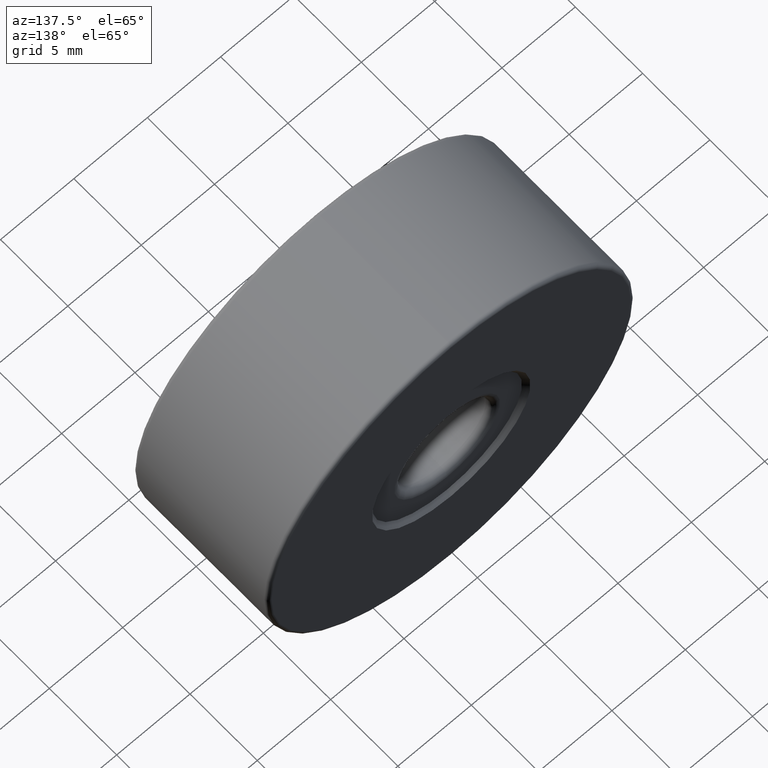
[diagram: clean part render]
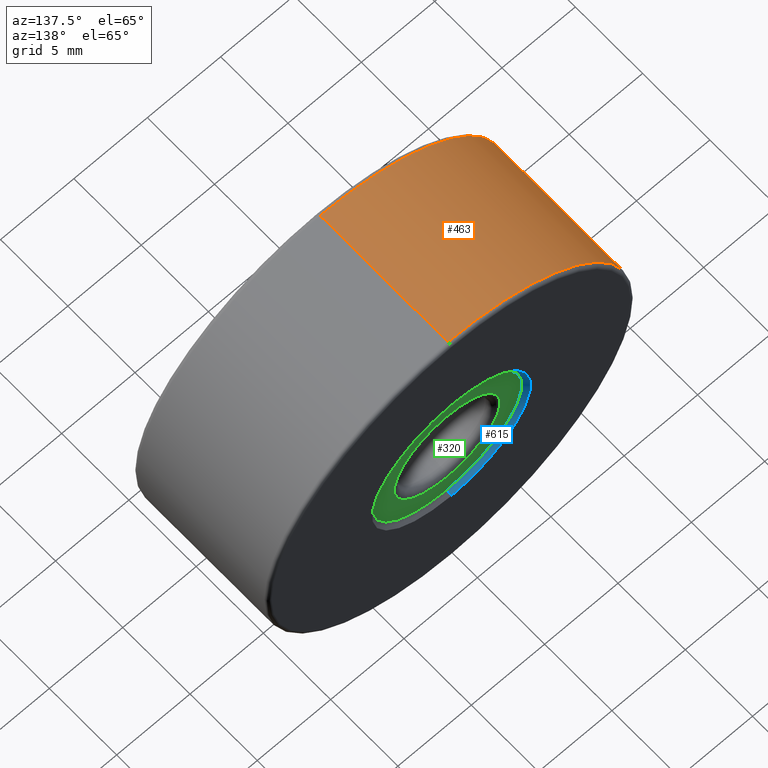
[diagram: same view with three faces highlighted in distinct colors, each labeled with its STEP entity id]
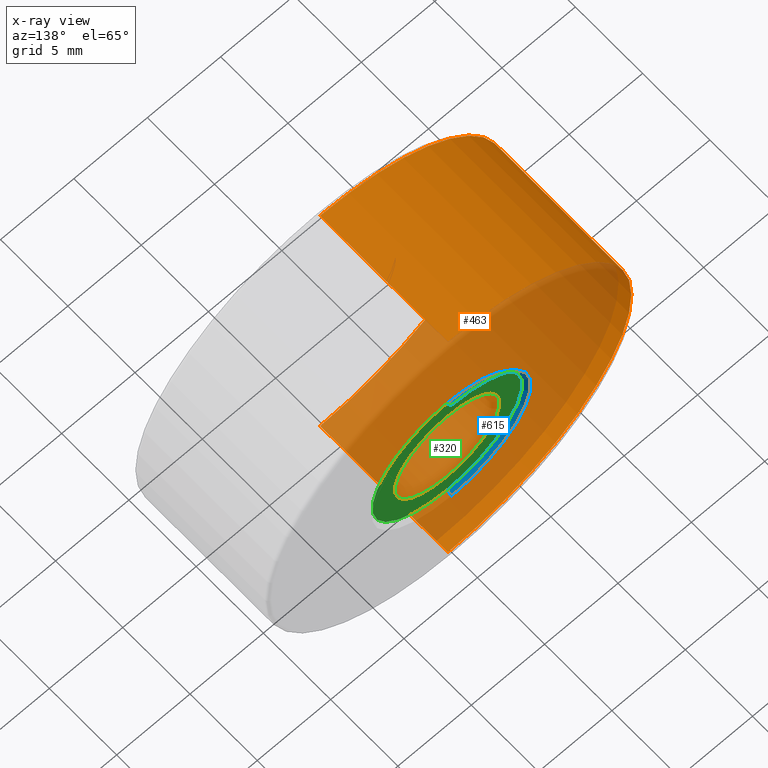
[diagram: x-ray of the same camera — body ghosted, the three highlighted faces saturated]
A machine part, auxiliary view with three faces highlighted in distinct colors.
The next image is the same camera in x-ray (body ghosted, the three faces saturated) — at least one of them is partly hidden behind the body in this view.
Their STEP definitions:

[orange] entity #463 — the highlighted cylindrical surface (partial cylindrical patch) has radius 12.5 mm, axis along (-0, -1, -0).
#16 = CARTESIAN_POINT ( 'NONE',  ( -4.682026255059964726, -6.344975976998274980, 12.50000000000000000 ) ) ;
#26 = CARTESIAN_POINT ( 'NONE',  ( -4.682026255059962949, 3.405024023001725020, 37.50000000000000711 ) ) ;
#37 = CARTESIAN_POINT ( 'NONE',  ( -4.682026255059962949, -6.344975976998274980, 37.50000000000000711 ) ) ;
#51 = VERTEX_POINT ( 'NONE', #37 ) ;
#57 = CARTESIAN_POINT ( 'NONE',  ( -4.682026255059962949, 3.155024023001725020, 12.50000000000000000 ) ) ;
#70 = CARTESIAN_POINT ( 'NONE',  ( -4.682026255059964726, -6.344975976998274980, 25.00000000000000000 ) ) ;
#83 = DIRECTION ( 'NONE',  ( 0.0000000000000000000, 0.0000000000000000000, 1.000000000000000000 ) ) ;
#87 = VERTEX_POINT ( 'NONE', #16 ) ;
#94 = ORIENTED_EDGE ( 'NONE', *, *, #296, .F. ) ;
#104 = DIRECTION ( 'NONE',  ( -0.0000000000000000000, -1.000000000000000000, -0.0000000000000000000 ) ) ;
#112 = CARTESIAN_POINT ( 'NONE',  ( -4.682026255059964726, 3.405024023001725020, 25.00000000000000000 ) ) ;
#117 = CIRCLE ( 'NONE', #396, 12.50000000000000355 ) ;
#154 = EDGE_CURVE ( 'NONE', #423, #428, #117, .T. ) ;
#196 = AXIS2_PLACEMENT_3D ( 'NONE', #70, #494, #346 ) ;
#213 = EDGE_CURVE ( 'NONE', #428, #87, #279, .T. ) ;
#219 = LINE ( 'NONE', #26, #589 ) ;
#260 = FACE_OUTER_BOUND ( 'NONE', #431, .T. ) ;
#267 = AXIS2_PLACEMENT_3D ( 'NONE', #112, #300, #545 ) ;
#279 = LINE ( 'NONE', #489, #415 ) ;
#296 = EDGE_CURVE ( 'NONE', #423, #51, #219, .T. ) ;
#300 = DIRECTION ( 'NONE',  ( -0.0000000000000000000, -1.000000000000000000, -0.0000000000000000000 ) ) ;
#305 = CIRCLE ( 'NONE', #196, 12.50000000000000355 ) ;
#319 = DIRECTION ( 'NONE',  ( -0.0000000000000000000, -1.000000000000000000, -0.0000000000000000000 ) ) ;
#338 = ORIENTED_EDGE ( 'NONE', *, *, #455, .T. ) ;
#346 = DIRECTION ( 'NONE',  ( 0.0000000000000000000, 0.0000000000000000000, 1.000000000000000000 ) ) ;
#358 = CYLINDRICAL_SURFACE ( 'NONE', #267, 12.50000000000000000 ) ;
#391 = CARTESIAN_POINT ( 'NONE',  ( -4.682026255059964726, 3.155024023001725020, 37.50000000000000711 ) ) ;
#396 = AXIS2_PLACEMENT_3D ( 'NONE', #414, #319, #83 ) ;
#414 = CARTESIAN_POINT ( 'NONE',  ( -4.682026255059964726, 3.155024023001725020, 25.00000000000000000 ) ) ;
#415 = VECTOR ( 'NONE', #104, 1000.000000000000000 ) ;
#423 = VERTEX_POINT ( 'NONE', #391 ) ;
#428 = VERTEX_POINT ( 'NONE', #57 ) ;
#431 = EDGE_LOOP ( 'NONE', ( #94, #598, #608, #338 ) ) ;
#455 = EDGE_CURVE ( 'NONE', #87, #51, #305, .T. ) ;
#457 = DIRECTION ( 'NONE',  ( -0.0000000000000000000, -1.000000000000000000, -0.0000000000000000000 ) ) ;
#463 = ADVANCED_FACE ( 'NONE', ( #260 ), #358, .T. ) ;
#489 = CARTESIAN_POINT ( 'NONE',  ( -4.682026255059964726, 3.405024023001725020, 12.50000000000000000 ) ) ;
#494 = DIRECTION ( 'NONE',  ( 0.0000000000000000000, 1.000000000000000000, 0.0000000000000000000 ) ) ;
#545 = DIRECTION ( 'NONE',  ( 0.0000000000000000000, 0.0000000000000000000, -1.000000000000000000 ) ) ;
#589 = VECTOR ( 'NONE', #457, 1000.000000000000000 ) ;
#598 = ORIENTED_EDGE ( 'NONE', *, *, #154, .T. ) ;
#608 = ORIENTED_EDGE ( 'NONE', *, *, #213, .T. ) ;

[blue] entity #615 — the highlighted conical surface has half-angle 45 deg.
#64 = LINE ( 'NONE', #345, #322 ) ;
#72 = CARTESIAN_POINT ( 'NONE',  ( -4.682026255059963837, 3.405024023001725020, 19.59999999999999787 ) ) ;
#92 = VECTOR ( 'NONE', #395, 1000.000000000000000 ) ;
#100 = VERTEX_POINT ( 'NONE', #110 ) ;
#110 = CARTESIAN_POINT ( 'NONE',  ( -4.682026255059963837, 3.105024023001725197, 19.90000000000000213 ) ) ;
#115 = EDGE_CURVE ( 'NONE', #100, #504, #299, .T. ) ;
#122 = EDGE_CURVE ( 'NONE', #100, #325, #523, .T. ) ;
#139 = ORIENTED_EDGE ( 'NONE', *, *, #231, .F. ) ;
#160 = DIRECTION ( 'NONE',  ( 0.0000000000000000000, 0.7071067811865444641, 0.7071067811865505703 ) ) ;
#174 = CIRCLE ( 'NONE', #602, 5.400000000000002132 ) ;
#185 = CONICAL_SURFACE ( 'NONE', #333, 5.100000000000000533, 0.7853981633974526089 ) ;
#203 = DIRECTION ( 'NONE',  ( 0.0000000000000000000, 0.0000000000000000000, 1.000000000000000000 ) ) ;
#212 = CARTESIAN_POINT ( 'NONE',  ( -4.682026255059964726, 3.105024023001725197, 25.00000000000000000 ) ) ;
#227 = VERTEX_POINT ( 'NONE', #392 ) ;
#231 = EDGE_CURVE ( 'NONE', #325, #227, #64, .T. ) ;
#238 = EDGE_LOOP ( 'NONE', ( #593, #277, #258, #139 ) ) ;
#258 = ORIENTED_EDGE ( 'NONE', *, *, #564, .F. ) ;
#277 = ORIENTED_EDGE ( 'NONE', *, *, #115, .T. ) ;
#290 = CARTESIAN_POINT ( 'NONE',  ( -4.682026255059963837, 3.105024023001725197, 19.90000000000000213 ) ) ;
#299 = LINE ( 'NONE', #290, #92 ) ;
#322 = VECTOR ( 'NONE', #160, 1000.000000000000000 ) ;
#325 = VERTEX_POINT ( 'NONE', #386 ) ;
#333 = AXIS2_PLACEMENT_3D ( 'NONE', #212, #493, #203 ) ;
#345 = CARTESIAN_POINT ( 'NONE',  ( -4.682026255059964726, 3.105024023001725197, 30.10000000000000142 ) ) ;
#352 = FACE_OUTER_BOUND ( 'NONE', #238, .T. ) ;
#386 = CARTESIAN_POINT ( 'NONE',  ( -4.682026255059964726, 3.105024023001725197, 30.10000000000000142 ) ) ;
#392 = CARTESIAN_POINT ( 'NONE',  ( -4.682026255059964726, 3.405024023001725020, 30.40000000000000213 ) ) ;
#394 = DIRECTION ( 'NONE',  ( -0.0000000000000000000, -1.000000000000000000, -0.0000000000000000000 ) ) ;
#395 = DIRECTION ( 'NONE',  ( 8.659560562354969836E-17, 0.7071067811865444641, -0.7071067811865505703 ) ) ;
#441 = DIRECTION ( 'NONE',  ( 0.0000000000000000000, 0.0000000000000000000, 1.000000000000000000 ) ) ;
#480 = CARTESIAN_POINT ( 'NONE',  ( -4.682026255059964726, 3.105024023001725197, 25.00000000000000000 ) ) ;
#485 = DIRECTION ( 'NONE',  ( 0.0000000000000000000, 0.0000000000000000000, 1.000000000000000000 ) ) ;
#493 = DIRECTION ( 'NONE',  ( 0.0000000000000000000, 1.000000000000000000, 0.0000000000000000000 ) ) ;
#495 = CARTESIAN_POINT ( 'NONE',  ( -4.682026255059964726, 3.405024023001725020, 25.00000000000000000 ) ) ;
#496 = DIRECTION ( 'NONE',  ( 0.0000000000000000000, 1.000000000000000000, 0.0000000000000000000 ) ) ;
#504 = VERTEX_POINT ( 'NONE', #72 ) ;
#523 = CIRCLE ( 'NONE', #579, 5.100000000000000533 ) ;
#564 = EDGE_CURVE ( 'NONE', #227, #504, #174, .T. ) ;
#579 = AXIS2_PLACEMENT_3D ( 'NONE', #480, #496, #485 ) ;
#593 = ORIENTED_EDGE ( 'NONE', *, *, #122, .F. ) ;
#602 = AXIS2_PLACEMENT_3D ( 'NONE', #495, #394, #441 ) ;
#615 = ADVANCED_FACE ( 'NONE', ( #352 ), #185, .F. ) ;

[green] entity #320 — the highlighted planar face has unit normal (0, 1, 0).
#32 = ORIENTED_EDGE ( 'NONE', *, *, #278, .T. ) ;
#47 = ORIENTED_EDGE ( 'NONE', *, *, #158, .T. ) ;
#48 = CARTESIAN_POINT ( 'NONE',  ( -4.682026255059963837, 3.105024023001725197, 21.40000000000000213 ) ) ;
#66 = AXIS2_PLACEMENT_3D ( 'NONE', #176, #563, #324 ) ;
#100 = VERTEX_POINT ( 'NONE', #110 ) ;
#110 = CARTESIAN_POINT ( 'NONE',  ( -4.682026255059963837, 3.105024023001725197, 19.90000000000000213 ) ) ;
#122 = EDGE_CURVE ( 'NONE', #100, #325, #523, .T. ) ;
#136 = AXIS2_PLACEMENT_3D ( 'NONE', #275, #517, #467 ) ;
#138 = VERTEX_POINT ( 'NONE', #188 ) ;
#152 = CARTESIAN_POINT ( 'NONE',  ( -4.682026255059964726, 3.105024023001725197, 25.00000000000000000 ) ) ;
#158 = EDGE_CURVE ( 'NONE', #325, #100, #437, .T. ) ;
#176 = CARTESIAN_POINT ( 'NONE',  ( -4.682026255059964726, 3.105024023001725197, 25.00000000000000000 ) ) ;
#181 = ORIENTED_EDGE ( 'NONE', *, *, #122, .T. ) ;
#188 = CARTESIAN_POINT ( 'NONE',  ( -4.682026255059964726, 3.105024023001725197, 28.60000000000000142 ) ) ;
#201 = EDGE_CURVE ( 'NONE', #138, #375, #601, .T. ) ;
#263 = DIRECTION ( 'NONE',  ( 0.0000000000000000000, 0.0000000000000000000, 1.000000000000000000 ) ) ;
#270 = EDGE_LOOP ( 'NONE', ( #47, #181 ) ) ;
#274 = AXIS2_PLACEMENT_3D ( 'NONE', #503, #549, #263 ) ;
#275 = CARTESIAN_POINT ( 'NONE',  ( -4.682026255059964726, 3.105024023001725197, 25.00000000000000000 ) ) ;
#278 = EDGE_CURVE ( 'NONE', #375, #138, #546, .T. ) ;
#283 = PLANE ( 'NONE',  #574 ) ;
#320 = ADVANCED_FACE ( 'NONE', ( #339, #474 ), #283, .T. ) ;
#324 = DIRECTION ( 'NONE',  ( 0.0000000000000000000, 0.0000000000000000000, 1.000000000000000000 ) ) ;
#325 = VERTEX_POINT ( 'NONE', #386 ) ;
#339 = FACE_BOUND ( 'NONE', #468, .T. ) ;
#375 = VERTEX_POINT ( 'NONE', #48 ) ;
#386 = CARTESIAN_POINT ( 'NONE',  ( -4.682026255059964726, 3.105024023001725197, 30.10000000000000142 ) ) ;
#437 = CIRCLE ( 'NONE', #136, 5.100000000000000533 ) ;
#467 = DIRECTION ( 'NONE',  ( 0.0000000000000000000, 0.0000000000000000000, 1.000000000000000000 ) ) ;
#468 = EDGE_LOOP ( 'NONE', ( #611, #32 ) ) ;
#470 = DIRECTION ( 'NONE',  ( 0.0000000000000000000, 1.000000000000000000, 0.0000000000000000000 ) ) ;
#474 = FACE_OUTER_BOUND ( 'NONE', #270, .T. ) ;
#480 = CARTESIAN_POINT ( 'NONE',  ( -4.682026255059964726, 3.105024023001725197, 25.00000000000000000 ) ) ;
#485 = DIRECTION ( 'NONE',  ( 0.0000000000000000000, 0.0000000000000000000, 1.000000000000000000 ) ) ;
#496 = DIRECTION ( 'NONE',  ( 0.0000000000000000000, 1.000000000000000000, 0.0000000000000000000 ) ) ;
#503 = CARTESIAN_POINT ( 'NONE',  ( -4.682026255059964726, 3.105024023001725197, 25.00000000000000000 ) ) ;
#517 = DIRECTION ( 'NONE',  ( 0.0000000000000000000, 1.000000000000000000, 0.0000000000000000000 ) ) ;
#519 = DIRECTION ( 'NONE',  ( 0.0000000000000000000, -0.0000000000000000000, 1.000000000000000000 ) ) ;
#523 = CIRCLE ( 'NONE', #579, 5.100000000000000533 ) ;
#546 = CIRCLE ( 'NONE', #274, 3.599999999999999201 ) ;
#549 = DIRECTION ( 'NONE',  ( -0.0000000000000000000, -1.000000000000000000, -0.0000000000000000000 ) ) ;
#563 = DIRECTION ( 'NONE',  ( -0.0000000000000000000, -1.000000000000000000, -0.0000000000000000000 ) ) ;
#574 = AXIS2_PLACEMENT_3D ( 'NONE', #152, #470, #519 ) ;
#579 = AXIS2_PLACEMENT_3D ( 'NONE', #480, #496, #485 ) ;
#601 = CIRCLE ( 'NONE', #66, 3.599999999999999201 ) ;
#611 = ORIENTED_EDGE ( 'NONE', *, *, #201, .T. ) ;